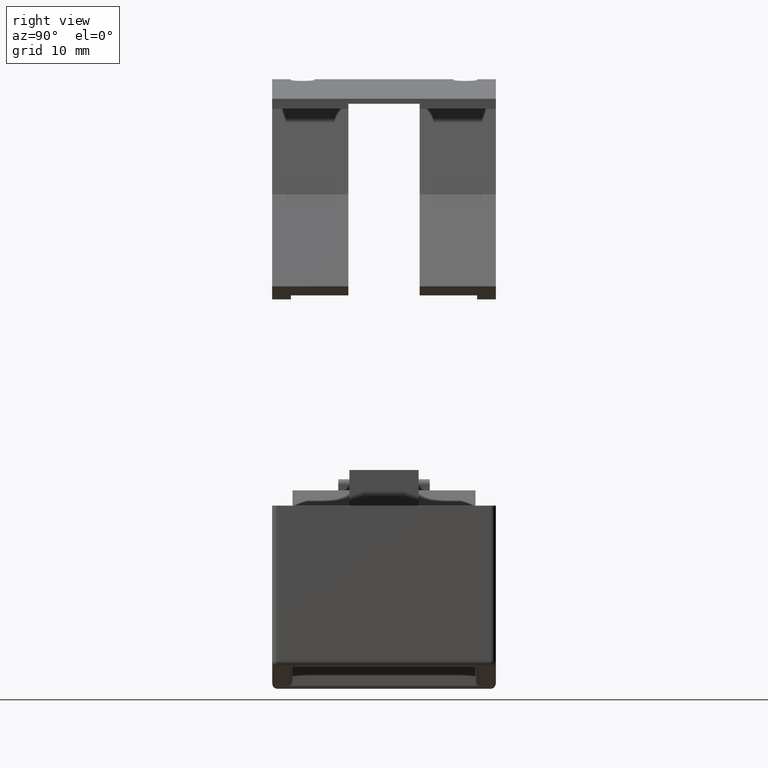
[diagram: clean part render]
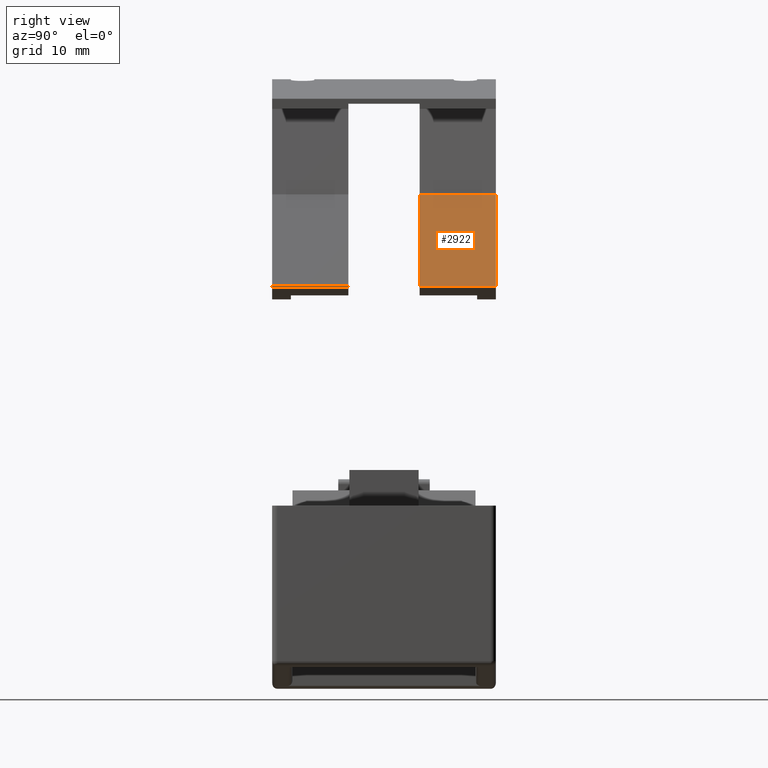
[diagram: same view with one face highlighted and labeled with its STEP entity id]
A machine part, right view. The second image highlights one B-rep face of the part: STEP entity #2922.
In plain terms, the highlighted planar face has unit normal (0.9045, 0, 0.4265).
Its self-contained STEP definition (entity closure, byte-faithful):
#146=PLANE('',#3117);
#295=FACE_OUTER_BOUND('',#446,.T.);
#446=EDGE_LOOP('',(#2701,#2702,#2703,#2704));
#832=LINE('',#4656,#1205);
#844=LINE('',#4680,#1217);
#854=LINE('',#4700,#1227);
#855=LINE('',#4701,#1228);
#1205=VECTOR('',#3816,7.5);
#1217=VECTOR('',#3836,9.99999999999999);
#1227=VECTOR('',#3854,9.99999999999999);
#1228=VECTOR('',#3855,7.5);
#1493=VERTEX_POINT('',#4653);
#1494=VERTEX_POINT('',#4655);
#1502=VERTEX_POINT('',#4679);
#1508=VERTEX_POINT('',#4699);
#1892=EDGE_CURVE('',#1494,#1493,#832,.T.);
#1904=EDGE_CURVE('',#1502,#1494,#844,.T.);
#1914=EDGE_CURVE('',#1508,#1493,#854,.T.);
#1915=EDGE_CURVE('',#1502,#1508,#855,.T.);
#2701=ORIENTED_EDGE('',*,*,#1904,.T.);
#2702=ORIENTED_EDGE('',*,*,#1892,.T.);
#2703=ORIENTED_EDGE('',*,*,#1914,.F.);
#2704=ORIENTED_EDGE('',*,*,#1915,.F.);
#2922=ADVANCED_FACE('',(#295),#146,.T.);
#3117=AXIS2_PLACEMENT_3D('',#4698,#3852,#3853);
#3816=DIRECTION('',(0.,0.,-1.));
#3836=DIRECTION('',(0.426511671735571,-0.904482058347941,0.));
#3852=DIRECTION('center_axis',(0.904482058347941,0.426511671735571,0.));
#3853=DIRECTION('ref_axis',(-0.426511671735571,0.904482058347941,0.));
#3854=DIRECTION('',(0.426511671735571,-0.904482058347941,0.));
#3855=DIRECTION('',(0.,0.,-1.));
#4653=CARTESIAN_POINT('',(5.52841292407093,-17.4504188783124,-11.));
#4655=CARTESIAN_POINT('',(5.52841292407093,-17.4504188783124,-3.5));
#4656=CARTESIAN_POINT('',(5.52841292407093,-17.4504188783124,0.));
#4679=CARTESIAN_POINT('',(1.26329620671523,-8.40559829483297,-3.5));
#4680=CARTESIAN_POINT('',(3.01056059514988,-12.1109348547882,-3.5));
#4698=CARTESIAN_POINT('Origin',(5.52841292407093,-17.4504188783124,0.));
#4699=CARTESIAN_POINT('',(1.26329620671523,-8.40559829483297,-11.));
#4700=CARTESIAN_POINT('',(1.26329620671523,-8.40559829483297,-11.));
#4701=CARTESIAN_POINT('',(1.26329620671523,-8.40559829483297,0.));